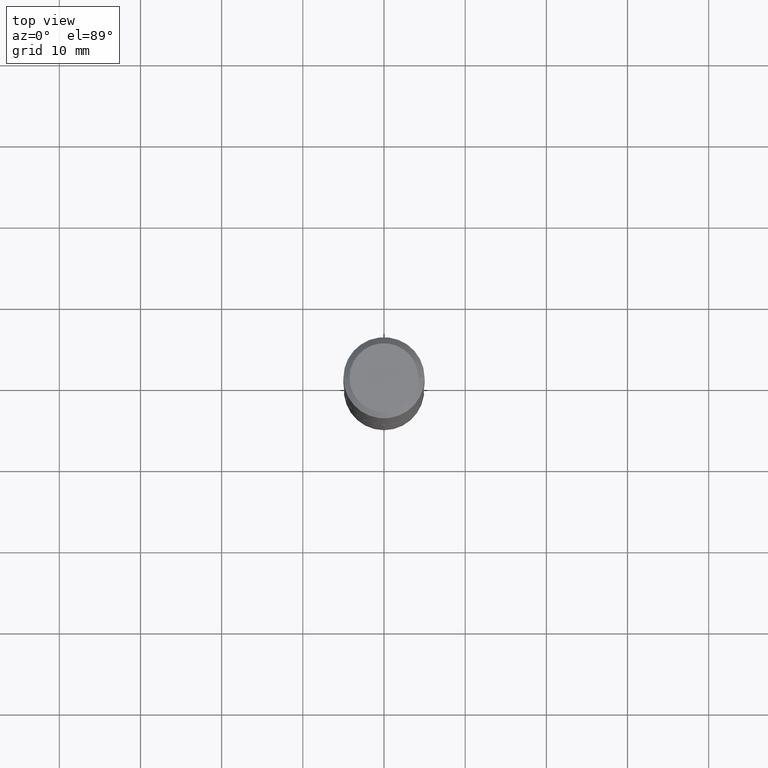
[diagram: clean part render]
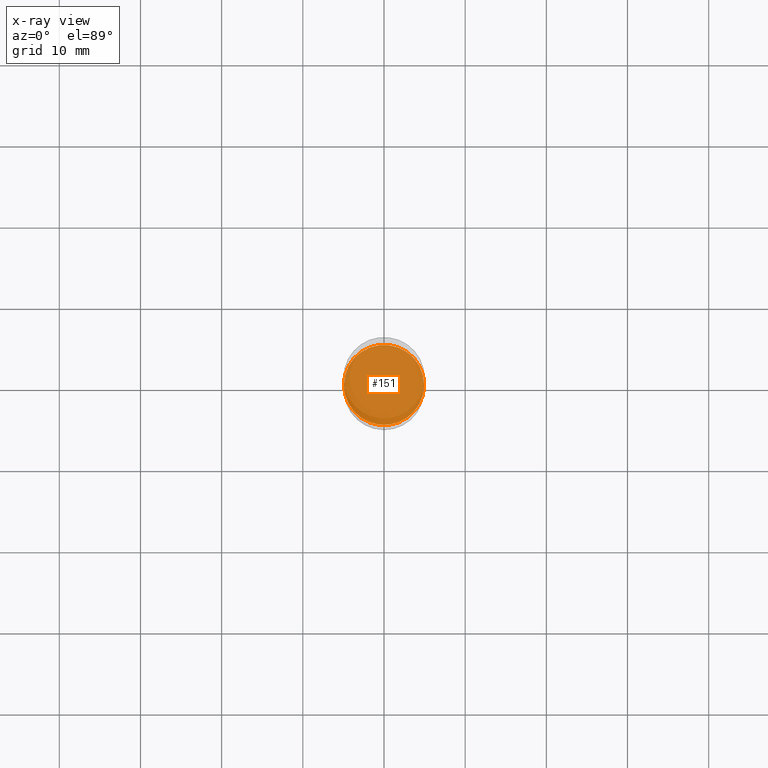
[diagram: x-ray — body ghosted, one internal face saturated and labeled with its STEP entity id]
A machine part, top view, then the same camera in x-ray: the body is ghosted and one INTERNAL B-rep face — a face not visible from any outside direction — is saturated and labeled: STEP entity #151.
In plain terms, the highlighted planar face has unit normal (-0, 0, 1).
Its self-contained STEP definition (entity closure, byte-faithful):
#15 = PLANE ( 'NONE',  #129 ) ;
#72 = EDGE_LOOP ( 'NONE', ( #247, #388 ) ) ;
#87 = CARTESIAN_POINT ( 'NONE',  ( 4.996826411678089735E-29, -7.134143819658199685E-15, -2.043299999999999894 ) ) ;
#90 = CARTESIAN_POINT ( 'NONE',  ( 2.991744469266002380E-29, -1.000553528336920337E-14, -2.043299999999999894 ) ) ;
#94 = EDGE_CURVE ( 'NONE', #474, #267, #332, .T. ) ;
#102 = DIRECTION ( 'NONE',  ( 1.000000000000000000, -6.982962677686267499E-15, 0.000000000000000000 ) ) ;
#121 = DIRECTION ( 'NONE',  ( -2.445468806185136597E-29, 3.491481338843145583E-15, 1.000000000000000000 ) ) ;
#129 = AXIS2_PLACEMENT_3D ( 'NONE', #90, #466, #362 ) ;
#151 = ADVANCED_FACE ( 'NONE', ( #403 ), #15, .F. ) ;
#159 = CARTESIAN_POINT ( 'NONE',  ( 0.1943999999999999895, -8.491631764200409770E-15, -2.043299999999999894 ) ) ;
#241 = CIRCLE ( 'NONE', #416, 0.1943999999999999895 ) ;
#247 = ORIENTED_EDGE ( 'NONE', *, *, #487, .F. ) ;
#257 = AXIS2_PLACEMENT_3D ( 'NONE', #87, #121, #431 ) ;
#267 = VERTEX_POINT ( 'NONE', #159 ) ;
#287 = CARTESIAN_POINT ( 'NONE',  ( -0.1943999999999999895, -5.750199514166452812E-15, -2.043299999999999894 ) ) ;
#332 = CIRCLE ( 'NONE', #257, 0.1943999999999999895 ) ;
#362 = DIRECTION ( 'NONE',  ( 1.000000000000000000, -6.982962677686265922E-15, 4.876176775795935793E-29 ) ) ;
#388 = ORIENTED_EDGE ( 'NONE', *, *, #94, .F. ) ;
#400 = CARTESIAN_POINT ( 'NONE',  ( 4.996826411678089735E-29, -7.134143819658199685E-15, -2.043299999999999894 ) ) ;
#403 = FACE_OUTER_BOUND ( 'NONE', #72, .T. ) ;
#416 = AXIS2_PLACEMENT_3D ( 'NONE', #400, #448, #102 ) ;
#431 = DIRECTION ( 'NONE',  ( 1.000000000000000000, -6.982962677686267499E-15, 0.000000000000000000 ) ) ;
#448 = DIRECTION ( 'NONE',  ( -2.445468806185136597E-29, 3.491481338843145583E-15, 1.000000000000000000 ) ) ;
#466 = DIRECTION ( 'NONE',  ( -2.438088387897960049E-29, 3.491481338843145188E-15, 1.000000000000000000 ) ) ;
#474 = VERTEX_POINT ( 'NONE', #287 ) ;
#487 = EDGE_CURVE ( 'NONE', #267, #474, #241, .T. ) ;